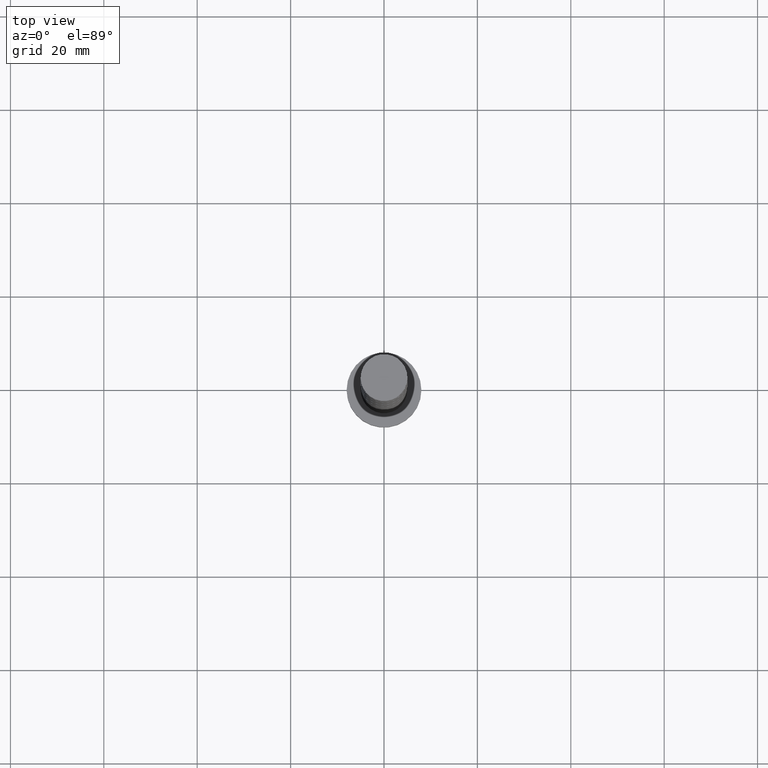
[diagram: clean part render]
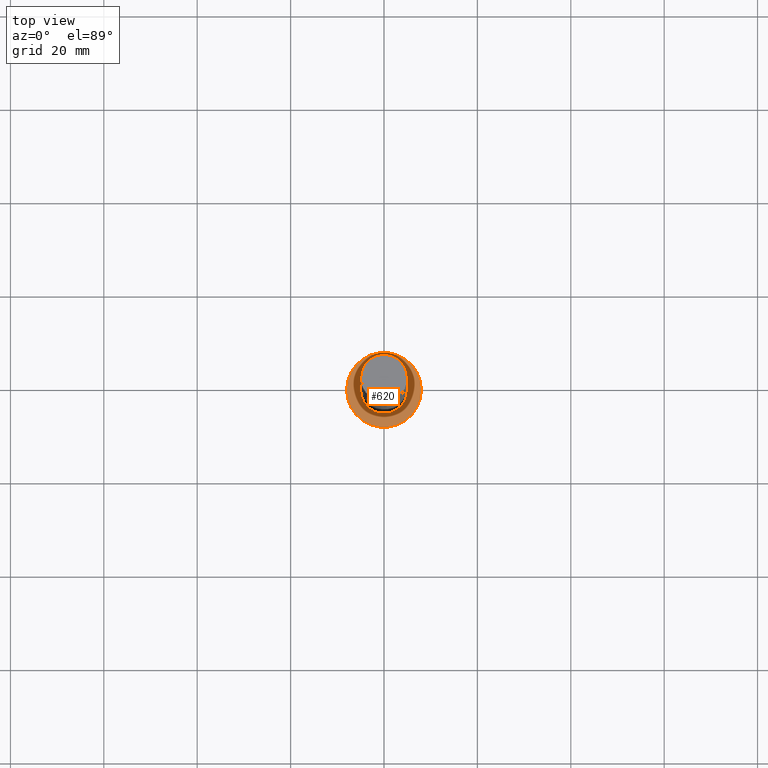
[diagram: same view with one face highlighted and labeled with its STEP entity id]
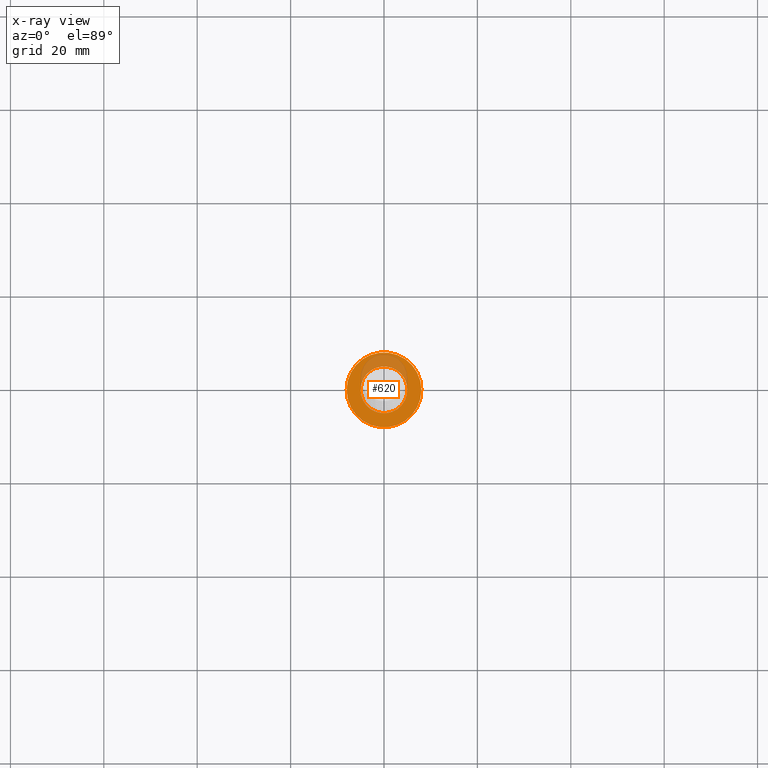
[diagram: x-ray of the same camera — body ghosted, the highlighted face saturated]
A machine part, top view. The second image highlights one B-rep face of the part: STEP entity #620.
The next image is the same camera in x-ray: the body ghosted, the highlighted face saturated — about 22% of this face is hidden behind the body in this view.
In plain terms, the highlighted planar face has unit normal (0, 0, 1).
Its self-contained STEP definition (entity closure, byte-faithful):
#82 = DIRECTION ( 'NONE',  ( 0.000000000000000000, 0.000000000000000000, 1.000000000000000000 ) ) ;
#92 = EDGE_LOOP ( 'NONE', ( #1380, #135 ) ) ;
#109 = VERTEX_POINT ( 'NONE', #1325 ) ;
#135 = ORIENTED_EDGE ( 'NONE', *, *, #638, .F. ) ;
#145 = AXIS2_PLACEMENT_3D ( 'NONE', #822, #702, #1215 ) ;
#171 = CIRCLE ( 'NONE', #1638, 8.000000000000000000 ) ;
#192 = CARTESIAN_POINT ( 'NONE',  ( 0.000000000000000000, 0.000000000000000000, 5.000000000000000000 ) ) ;
#309 = CARTESIAN_POINT ( 'NONE',  ( 0.000000000000000000, 0.000000000000000000, 5.000000000000000000 ) ) ;
#340 = DIRECTION ( 'NONE',  ( 0.000000000000000000, 0.000000000000000000, 1.000000000000000000 ) ) ;
#431 = PLANE ( 'NONE',  #667 ) ;
#511 = AXIS2_PLACEMENT_3D ( 'NONE', #1592, #82, #719 ) ;
#534 = CIRCLE ( 'NONE', #145, 5.000000000000000000 ) ;
#558 = VERTEX_POINT ( 'NONE', #832 ) ;
#569 = DIRECTION ( 'NONE',  ( 0.000000000000000000, 0.000000000000000000, 1.000000000000000000 ) ) ;
#620 = ADVANCED_FACE ( 'NONE', ( #1594, #1359 ), #431, .T. ) ;
#638 = EDGE_CURVE ( 'NONE', #558, #1405, #534, .T. ) ;
#643 = CIRCLE ( 'NONE', #796, 8.000000000000000000 ) ;
#667 = AXIS2_PLACEMENT_3D ( 'NONE', #192, #1604, #947 ) ;
#700 = CARTESIAN_POINT ( 'NONE',  ( -5.000000000000000000, 0.000000000000000000, 5.000000000000000000 ) ) ;
#702 = DIRECTION ( 'NONE',  ( 0.000000000000000000, 0.000000000000000000, 1.000000000000000000 ) ) ;
#719 = DIRECTION ( 'NONE',  ( 1.000000000000000000, 0.000000000000000000, 0.000000000000000000 ) ) ;
#796 = AXIS2_PLACEMENT_3D ( 'NONE', #1124, #340, #1406 ) ;
#822 = CARTESIAN_POINT ( 'NONE',  ( 0.000000000000000000, 0.000000000000000000, 5.000000000000000000 ) ) ;
#827 = CIRCLE ( 'NONE', #511, 5.000000000000000000 ) ;
#832 = CARTESIAN_POINT ( 'NONE',  ( 5.000000000000000000, 6.123233995736766282E-16, 5.000000000000000000 ) ) ;
#881 = EDGE_CURVE ( 'NONE', #1249, #109, #171, .T. ) ;
#947 = DIRECTION ( 'NONE',  ( 1.000000000000000000, 0.000000000000000000, -0.000000000000000000 ) ) ;
#1041 = ORIENTED_EDGE ( 'NONE', *, *, #1110, .T. ) ;
#1063 = DIRECTION ( 'NONE',  ( 1.000000000000000000, 0.000000000000000000, 0.000000000000000000 ) ) ;
#1110 = EDGE_CURVE ( 'NONE', #109, #1249, #643, .T. ) ;
#1124 = CARTESIAN_POINT ( 'NONE',  ( 0.000000000000000000, 0.000000000000000000, 5.000000000000000000 ) ) ;
#1215 = DIRECTION ( 'NONE',  ( 1.000000000000000000, 0.000000000000000000, 0.000000000000000000 ) ) ;
#1249 = VERTEX_POINT ( 'NONE', #1310 ) ;
#1310 = CARTESIAN_POINT ( 'NONE',  ( 8.000000000000000000, 9.797174393178825657E-16, 5.000000000000000000 ) ) ;
#1325 = CARTESIAN_POINT ( 'NONE',  ( -8.000000000000000000, 0.000000000000000000, 5.000000000000000000 ) ) ;
#1359 = FACE_OUTER_BOUND ( 'NONE', #1563, .T. ) ;
#1380 = ORIENTED_EDGE ( 'NONE', *, *, #1410, .F. ) ;
#1405 = VERTEX_POINT ( 'NONE', #700 ) ;
#1406 = DIRECTION ( 'NONE',  ( 1.000000000000000000, 0.000000000000000000, 0.000000000000000000 ) ) ;
#1410 = EDGE_CURVE ( 'NONE', #1405, #558, #827, .T. ) ;
#1499 = ORIENTED_EDGE ( 'NONE', *, *, #881, .T. ) ;
#1563 = EDGE_LOOP ( 'NONE', ( #1041, #1499 ) ) ;
#1592 = CARTESIAN_POINT ( 'NONE',  ( 0.000000000000000000, 0.000000000000000000, 5.000000000000000000 ) ) ;
#1594 = FACE_BOUND ( 'NONE', #92, .T. ) ;
#1604 = DIRECTION ( 'NONE',  ( 0.000000000000000000, 0.000000000000000000, 1.000000000000000000 ) ) ;
#1638 = AXIS2_PLACEMENT_3D ( 'NONE', #309, #569, #1063 ) ;